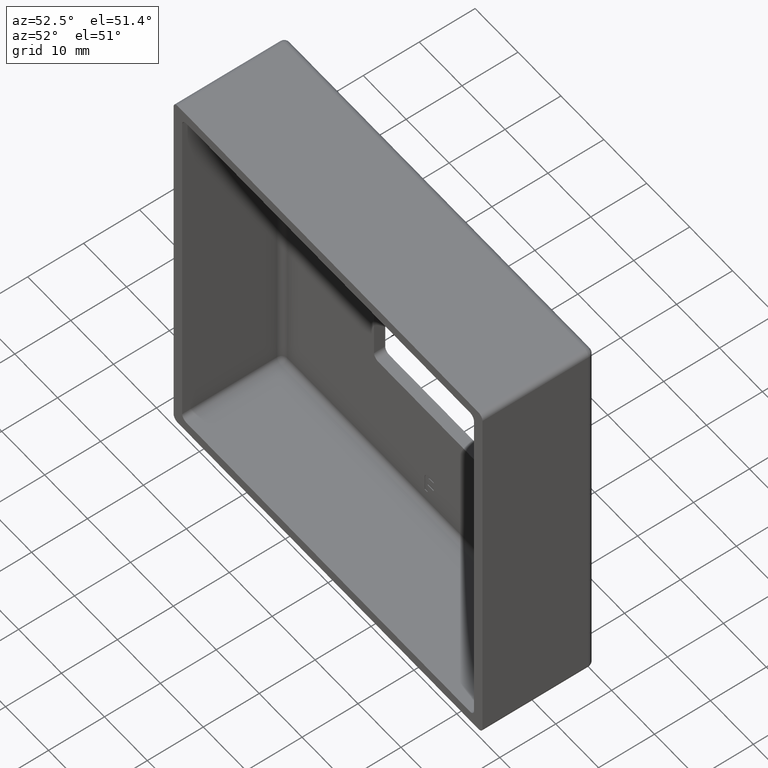
[diagram: clean part render]
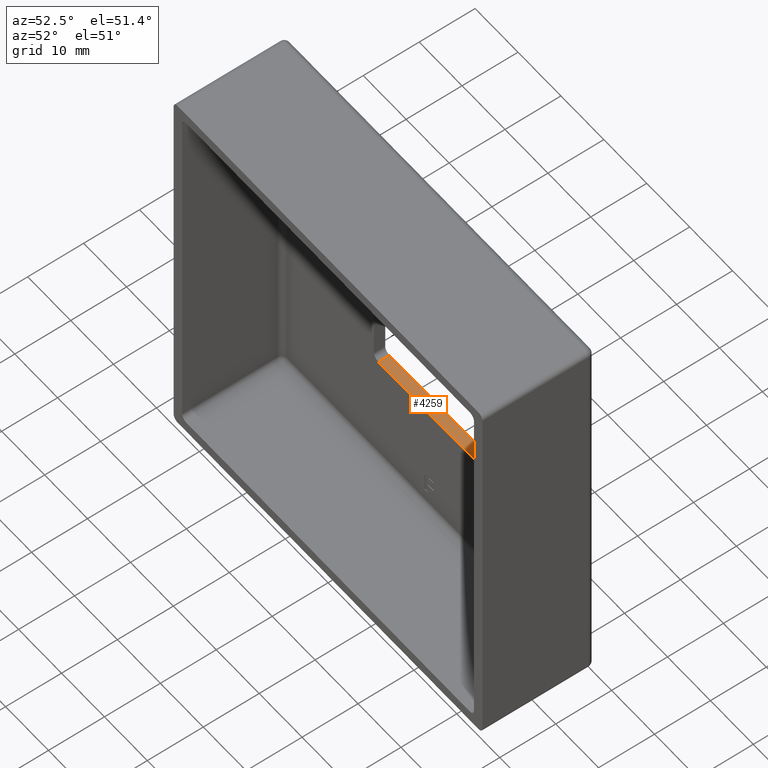
[diagram: same view with one face highlighted and labeled with its STEP entity id]
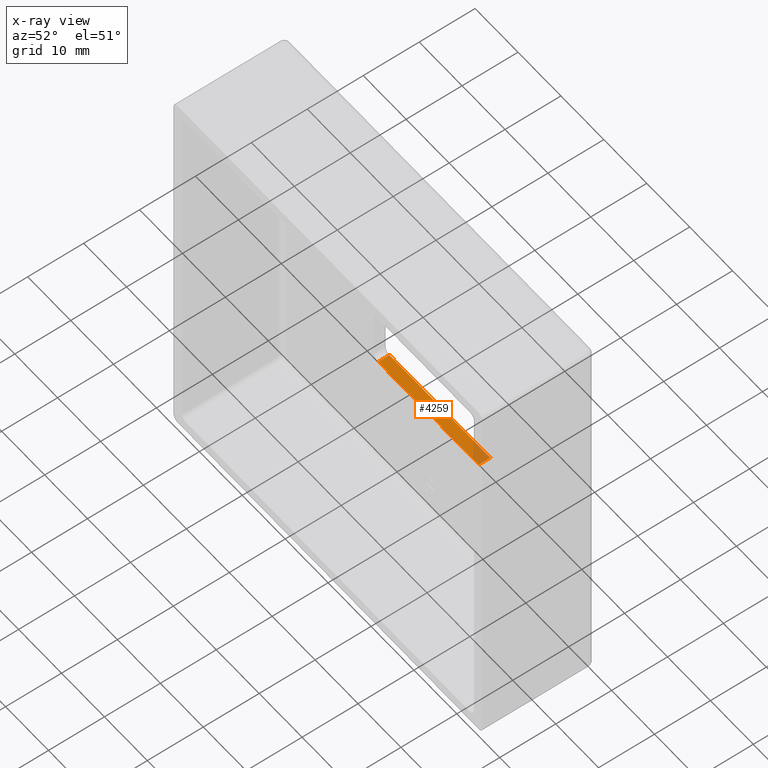
[diagram: x-ray of the same camera — body ghosted, the highlighted face saturated]
A machine part, auxiliary view. The second image highlights one B-rep face of the part: STEP entity #4259.
The next image is the same camera in x-ray: the body ghosted, the highlighted face saturated — about 11% of this face is hidden behind the body in this view.
In plain terms, the highlighted planar face has unit normal (0, 0, -1).
Its self-contained STEP definition (entity closure, byte-faithful):
#607 = DIRECTION ( 'NONE',  ( -0.000000000000000000, 1.000000000000000000, 0.000000000000000000 ) ) ;
#925 = VERTEX_POINT ( 'NONE', #15595 ) ;
#1357 = CARTESIAN_POINT ( 'NONE',  ( 11.74999999999999289, 20.00000000000000000, -12.74999999999999467 ) ) ;
#1664 = CARTESIAN_POINT ( 'NONE',  ( -12.75000000000000355, 20.00000000000000000, -12.74999999999999822 ) ) ;
#2156 = FACE_OUTER_BOUND ( 'NONE', #13346, .T. ) ;
#2245 = LINE ( 'NONE', #5948, #14586 ) ;
#2868 = CARTESIAN_POINT ( 'NONE',  ( -12.75000000000000355, 0.000000000000000000, -12.74999999999999822 ) ) ;
#3304 = CARTESIAN_POINT ( 'NONE',  ( -11.75000000000000355, 18.00000000000000355, -12.74999999999999822 ) ) ;
#3365 = CARTESIAN_POINT ( 'NONE',  ( -11.75000000000000355, 20.00000000000000000, -12.74999999999999822 ) ) ;
#3469 = EDGE_CURVE ( 'NONE', #14647, #4976, #9176, .T. ) ;
#4129 = ORIENTED_EDGE ( 'NONE', *, *, #16025, .F. ) ;
#4259 = ADVANCED_FACE ( 'NONE', ( #2156 ), #14482, .F. ) ;
#4976 = VERTEX_POINT ( 'NONE', #3304 ) ;
#5254 = ORIENTED_EDGE ( 'NONE', *, *, #15377, .T. ) ;
#5841 = VERTEX_POINT ( 'NONE', #1357 ) ;
#5903 = DIRECTION ( 'NONE',  ( 0.000000000000000000, -1.000000000000000000, -0.000000000000000000 ) ) ;
#5948 = CARTESIAN_POINT ( 'NONE',  ( 1.734723475976806700E-15, 18.00000000000000355, -12.74999999999999645 ) ) ;
#6435 = VECTOR ( 'NONE', #607, 1000.000000000000000 ) ;
#6849 = LINE ( 'NONE', #8461, #6435 ) ;
#7809 = LINE ( 'NONE', #1664, #10289 ) ;
#8368 = DIRECTION ( 'NONE',  ( -1.000000000000000000, 0.000000000000000000, -1.360567432138672328E-16 ) ) ;
#8461 = CARTESIAN_POINT ( 'NONE',  ( 11.74999999999999289, 20.00000000000000000, -12.74999999999999467 ) ) ;
#8673 = ORIENTED_EDGE ( 'NONE', *, *, #3469, .T. ) ;
#9176 = LINE ( 'NONE', #9886, #14514 ) ;
#9472 = DIRECTION ( 'NONE',  ( -1.000000000000000000, -0.000000000000000000, -1.360567432138672328E-16 ) ) ;
#9886 = CARTESIAN_POINT ( 'NONE',  ( -11.75000000000000355, 18.00000000000000355, -12.74999999999999822 ) ) ;
#10289 = VECTOR ( 'NONE', #9472, 1000.000000000000000 ) ;
#10999 = AXIS2_PLACEMENT_3D ( 'NONE', #2868, #13436, #16182 ) ;
#11644 = EDGE_CURVE ( 'NONE', #925, #5841, #6849, .T. ) ;
#13346 = EDGE_LOOP ( 'NONE', ( #4129, #15378, #5254, #8673 ) ) ;
#13436 = DIRECTION ( 'NONE',  ( 1.360567432138672328E-16, 0.000000000000000000, -1.000000000000000000 ) ) ;
#14482 = PLANE ( 'NONE',  #10999 ) ;
#14514 = VECTOR ( 'NONE', #5903, 1000.000000000000000 ) ;
#14586 = VECTOR ( 'NONE', #8368, 1000.000000000000000 ) ;
#14647 = VERTEX_POINT ( 'NONE', #3365 ) ;
#15377 = EDGE_CURVE ( 'NONE', #5841, #14647, #7809, .T. ) ;
#15378 = ORIENTED_EDGE ( 'NONE', *, *, #11644, .T. ) ;
#15595 = CARTESIAN_POINT ( 'NONE',  ( 11.74999999999999289, 18.00000000000000355, -12.74999999999999467 ) ) ;
#16025 = EDGE_CURVE ( 'NONE', #925, #4976, #2245, .T. ) ;
#16182 = DIRECTION ( 'NONE',  ( -1.000000000000000000, 0.000000000000000000, -1.360567432138672328E-16 ) ) ;